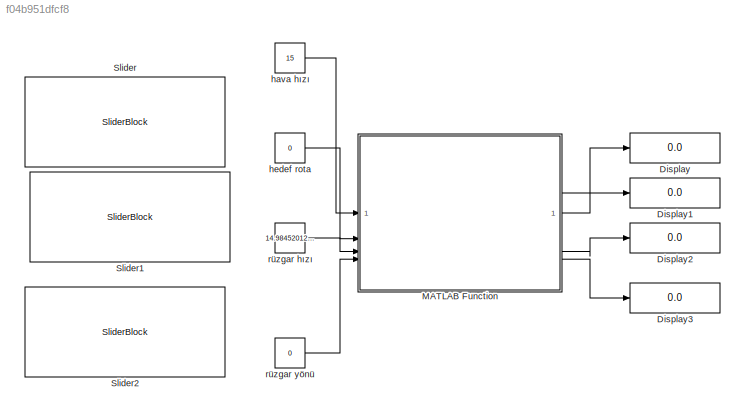
MODEL slx_f04b951dfcf8
KIND model
CONFIG AbsTol = auto
CONFIG EnableMultiTasking = off
CONFIG FixedStep = auto
CONFIG MaxStep = auto
CONFIG MinStep = auto
CONFIG RelTol = 1e-3
CONFIG SampleTimeConstraint = Unconstrained
CONFIG SolverName = VariableStepAuto
CONFIG StartTime = 0.0
CONFIG StopTime = inf
BLOCK [Display] Display
  Decimation = 1
BLOCK [Display] Display1
  Decimation = 1
BLOCK [Display] Display2
  Decimation = 1
BLOCK [Display] Display3
  Decimation = 1
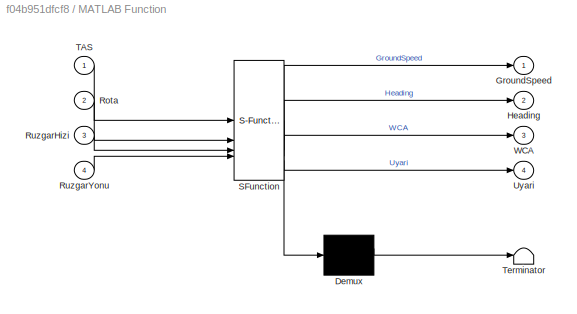
BLOCK [SubSystem] MATLAB Function
  ErrorFcn = Stateflow.Translate.translate
  PermitHierarchicalResolution = ExplicitOnly
  SFBlockType = MATLAB Function
  TreatAsAtomicUnit = on
BLOCK [Demux] MATLAB Function/ Demux 
  Outputs = 1
BLOCK [S-Function] MATLAB Function/ SFunction 
  EnableBusSupport = on
  FunctionName = sf_sfun
  PortCounts = [4 5]
  SFcnIsStateOwnerBlock = off
  SFunctionDeploymentMode = off
  Tag = Stateflow S-Function 2
BLOCK [Terminator] MATLAB Function/ Terminator 
BLOCK [Outport] MATLAB Function/GroundSpeed
BLOCK [Outport] MATLAB Function/Heading
  Port = 2
BLOCK [Inport] MATLAB Function/Rota
  Port = 2
BLOCK [Inport] MATLAB Function/RuzgarHizi
  Port = 3
BLOCK [Inport] MATLAB Function/RuzgarYonu
  Port = 4
BLOCK [Inport] MATLAB Function/TAS
BLOCK [Outport] MATLAB Function/Uyari
  Port = 4
BLOCK [Outport] MATLAB Function/WCA
  Port = 3
BLOCK [SliderBlock] Slider
  ScaleMax = 360
BLOCK [SliderBlock] Slider1
  ScaleMax = 20
BLOCK [SliderBlock] Slider2
  ScaleMax = 360
BLOCK [Constant] hava hızı
  Value = 15
BLOCK [Constant] hedef rota
  Value = 0
BLOCK [Constant] rüzgar hızı
  Value = 14.98452012383901
BLOCK [Constant] rüzgar yönü
  Value = 0
LINE MATLAB Function:1 -> Display:1
LINE MATLAB Function:2 -> Display1:1
LINE MATLAB Function:3 -> Display2:1
LINE MATLAB Function:4 -> Display3:1
LINE hava hızı:1 -> MATLAB Function:1
LINE hedef rota:1 -> MATLAB Function:2
LINE rüzgar hızı:1 -> MATLAB Function:3
LINE rüzgar yönü:1 -> MATLAB Function:4
CHART MATLAB Function states=1 transitions=1
  STATE_LABEL 'eML_blk_kernel()'
  STATE_LABEL 'SCRIPT:\nfunction [GroundSpeed, Heading, WCA, Uyari] = fcn(TAS, Rota, RuzgarHizi, RuzgarYonu)\n    % Bu fonksiyon Ruzgar Ucgeni hesabini yapar\n    \n    % 1. Aci Donusumleri (Derece -> Radyan)\n    % Ruzgarin "Gittigi" yonu bulmak icin 180 ekliyoruz\n    ruzgar_rad = deg2rad(RuzgarYonu + 180);\n    rota_rad = deg2rad(Rota);\n    \n    % 2. Ruzgar Bilesenleri\n    Wx = RuzgarHizi * sin(ruzgar_rad);\n    Wy =...<+690ch>'
CHART  states=0 transitions=0
